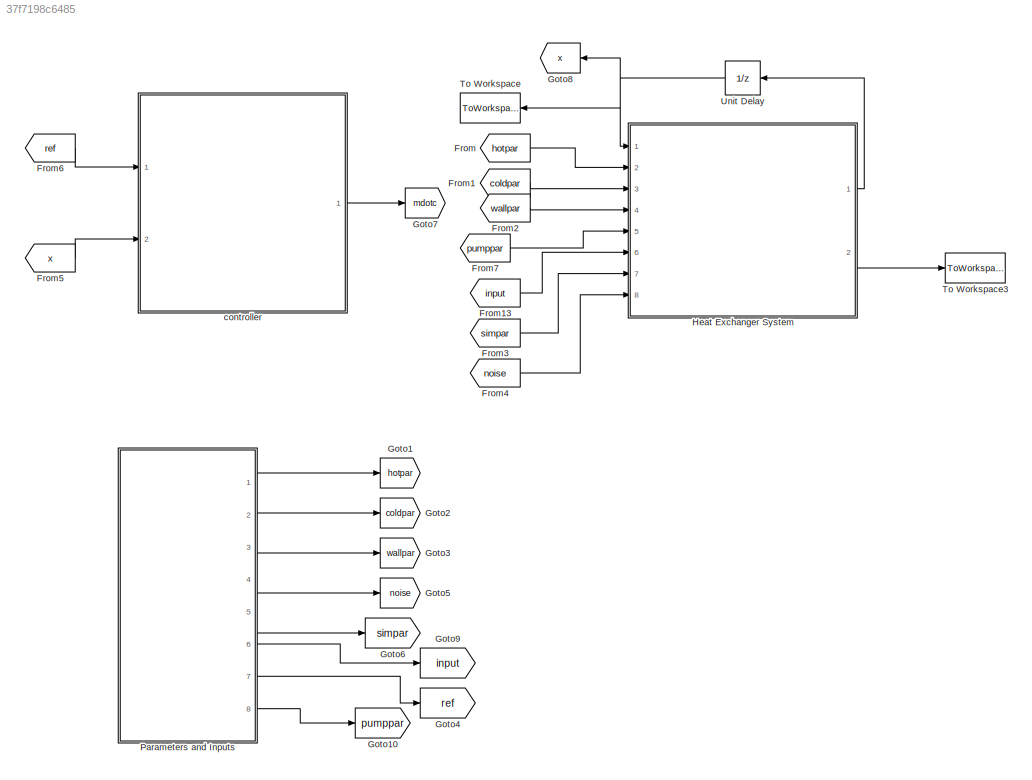
MODEL slx_37f7198c6485
KIND model
BLOCK [From] From
  GotoTag = hotpar
  TagVisibility = global
BLOCK [From] From1
  GotoTag = coldpar
  TagVisibility = global
BLOCK [From] From13
  GotoTag = input
  TagVisibility = global
BLOCK [From] From2
  GotoTag = wallpar
  TagVisibility = global
BLOCK [From] From3
  GotoTag = simpar
  TagVisibility = global
BLOCK [From] From4
  GotoTag = noise
  TagVisibility = global
BLOCK [From] From5
  GotoTag = x
  TagVisibility = global
BLOCK [From] From6
  GotoTag = ref
  TagVisibility = global
BLOCK [From] From7
  GotoTag = pumppar
  TagVisibility = global
BLOCK [Goto] Goto1
  GotoTag = hotpar
  TagVisibility = global
BLOCK [Goto] Goto10
  GotoTag = pumppar
  TagVisibility = global
BLOCK [Goto] Goto2
  GotoTag = coldpar
  TagVisibility = global
BLOCK [Goto] Goto3
  GotoTag = wallpar
  TagVisibility = global
BLOCK [Goto] Goto4
  GotoTag = ref
  TagVisibility = global
BLOCK [Goto] Goto5
  GotoTag = noise
  TagVisibility = global
BLOCK [Goto] Goto6
  GotoTag = simpar
  TagVisibility = global
BLOCK [Goto] Goto7
  GotoTag = mdotc
  TagVisibility = global
BLOCK [Goto] Goto8
  GotoTag = x
  TagVisibility = global
BLOCK [Goto] Goto9
  GotoTag = input
  TagVisibility = global
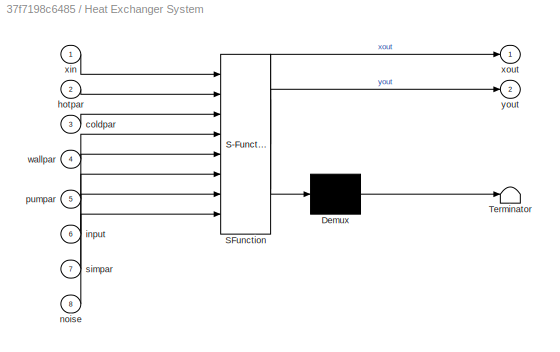
BLOCK [SubSystem] Heat Exchanger System
  ErrorFcn = Stateflow.Translate.translate
  FunctionWithSeparateData = off
  MaskHideContents = off
  MinAlgLoopOccurrences = off
  Opaque = off
  PermitHierarchicalResolution = ExplicitOnly
  Ports = [8, 2]
  PropExecContextOutsideSubsystem = off
  RTWSystemCode = Auto
  RequestExecContextInheritance = off
  SFBlockType = MATLAB Function
  TreatAsAtomicUnit = on
BLOCK [Demux] Heat Exchanger System/ Demux 
  Outputs = 1
  Ports = [1, 1]
BLOCK [S-Function] Heat Exchanger System/ SFunction 
  EnableBusSupport = on
  FunctionName = sf_sfun
  PortCounts = [8 3]
  Ports = [8, 3]
  Tag = Stateflow S-Function HXpump_justplant 2
BLOCK [Terminator] Heat Exchanger System/ Terminator 
BLOCK [Inport] Heat Exchanger System/coldpar
  IconDisplay = Port number
  Port = 3
BLOCK [Inport] Heat Exchanger System/hotpar
  IconDisplay = Port number
  Port = 2
BLOCK [Inport] Heat Exchanger System/input
  IconDisplay = Port number
  Port = 6
BLOCK [Inport] Heat Exchanger System/noise
  IconDisplay = Port number
  Port = 8
BLOCK [Inport] Heat Exchanger System/pumpar
  IconDisplay = Port number
  Port = 5
BLOCK [Inport] Heat Exchanger System/simpar
  IconDisplay = Port number
  Port = 7
BLOCK [Inport] Heat Exchanger System/wallpar
  IconDisplay = Port number
  Port = 4
BLOCK [Inport] Heat Exchanger System/xin
  IconDisplay = Port number
BLOCK [Outport] Heat Exchanger System/xout
  IconDisplay = Port number
BLOCK [Outport] Heat Exchanger System/yout
  IconDisplay = Port number
  Port = 2
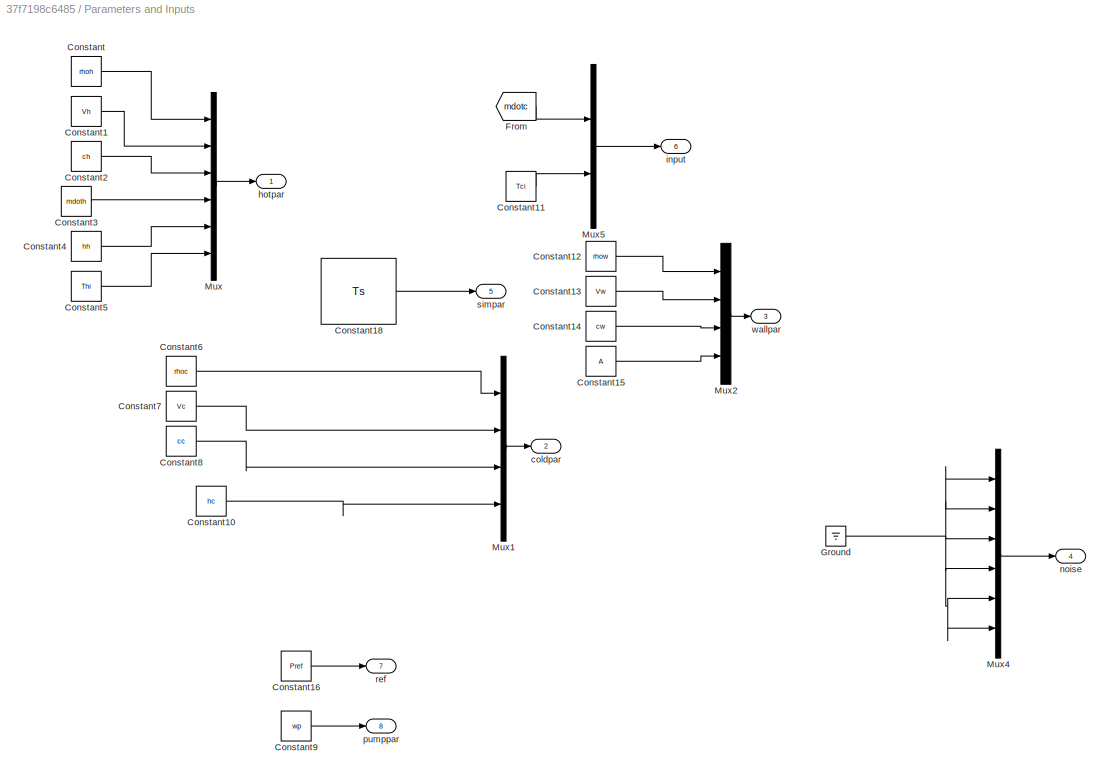
BLOCK [SubSystem] Parameters and Inputs
  FunctionWithSeparateData = off
  MaskHideContents = off
  MinAlgLoopOccurrences = off
  Opaque = off
  Ports = [0, 8]
  PropExecContextOutsideSubsystem = off
  RTWSystemCode = Auto
  RequestExecContextInheritance = off
BLOCK [Constant] Parameters and Inputs/Constant
  SampleTime = Ts
  Value = rhoh
BLOCK [Constant] Parameters and Inputs/Constant1
  SampleTime = Ts
  Value = Vh
BLOCK [Constant] Parameters and Inputs/Constant10
  SampleTime = Ts
  Value = hc
BLOCK [Constant] Parameters and Inputs/Constant11
  SampleTime = Ts
  Value = Tci
BLOCK [Constant] Parameters and Inputs/Constant12
  SampleTime = Ts
  Value = rhow
BLOCK [Constant] Parameters and Inputs/Constant13
  SampleTime = Ts
  Value = Vw
BLOCK [Constant] Parameters and Inputs/Constant14
  SampleTime = Ts
  Value = cw
BLOCK [Constant] Parameters and Inputs/Constant15
  SampleTime = Ts
  Value = A
BLOCK [Constant] Parameters and Inputs/Constant16
  SampleTime = Ts
  Value = Pref
BLOCK [Constant] Parameters and Inputs/Constant18
  SampleTime = Ts
  Value = Ts
BLOCK [Constant] Parameters and Inputs/Constant2
  SampleTime = Ts
  Value = ch
BLOCK [Constant] Parameters and Inputs/Constant3
  SampleTime = Ts
  Value = mdoth
BLOCK [Constant] Parameters and Inputs/Constant4
  SampleTime = Ts
  Value = hh
BLOCK [Constant] Parameters and Inputs/Constant5
  SampleTime = Ts
  Value = Thi
BLOCK [Constant] Parameters and Inputs/Constant6
  SampleTime = Ts
  Value = rhoc
BLOCK [Constant] Parameters and Inputs/Constant7
  SampleTime = Ts
  Value = Vc
BLOCK [Constant] Parameters and Inputs/Constant8
  SampleTime = Ts
  Value = cc
BLOCK [Constant] Parameters and Inputs/Constant9
  SampleTime = Ts
  Value = wp
BLOCK [From] Parameters and Inputs/From
  GotoTag = mdotc
  TagVisibility = global
BLOCK [Ground] Parameters and Inputs/Ground
BLOCK [Mux] Parameters and Inputs/Mux
  DisplayOption = bar
  Inputs = 6
  Ports = [6, 1]
BLOCK [Mux] Parameters and Inputs/Mux1
  DisplayOption = bar
  Ports = [4, 1]
BLOCK [Mux] Parameters and Inputs/Mux2
  DisplayOption = bar
  Ports = [4, 1]
BLOCK [Mux] Parameters and Inputs/Mux4
  DisplayOption = bar
  Inputs = 6
  Ports = [6, 1]
BLOCK [Mux] Parameters and Inputs/Mux5
  DisplayOption = bar
  Inputs = 2
  Ports = [2, 1]
BLOCK [Outport] Parameters and Inputs/coldpar
  IconDisplay = Port number
  Port = 2
BLOCK [Outport] Parameters and Inputs/hotpar
  IconDisplay = Port number
BLOCK [Outport] Parameters and Inputs/input
  IconDisplay = Port number
  Port = 6
BLOCK [Outport] Parameters and Inputs/noise
  IconDisplay = Port number
  Port = 4
BLOCK [Outport] Parameters and Inputs/pumppar
  IconDisplay = Port number
  Port = 8
BLOCK [Outport] Parameters and Inputs/ref
  IconDisplay = Port number
  Port = 7
BLOCK [Outport] Parameters and Inputs/simpar
  IconDisplay = Port number
  Port = 5
BLOCK [Outport] Parameters and Inputs/wallpar
  IconDisplay = Port number
  Port = 3
BLOCK [ToWorkspace] To Workspace
  MaxDataPoints = inf
  Ports = [1]
  SampleTime = -1
  VariableName = XDT
BLOCK [ToWorkspace] To Workspace3
  MaxDataPoints = inf
  Ports = [1]
  SampleTime = -1
  VariableName = yout
BLOCK [UnitDelay] Unit Delay
  InitialCondition = x0([1 2 3 6])
  InputProcessing = Elements as channels (sample based)
  SampleTime = -1
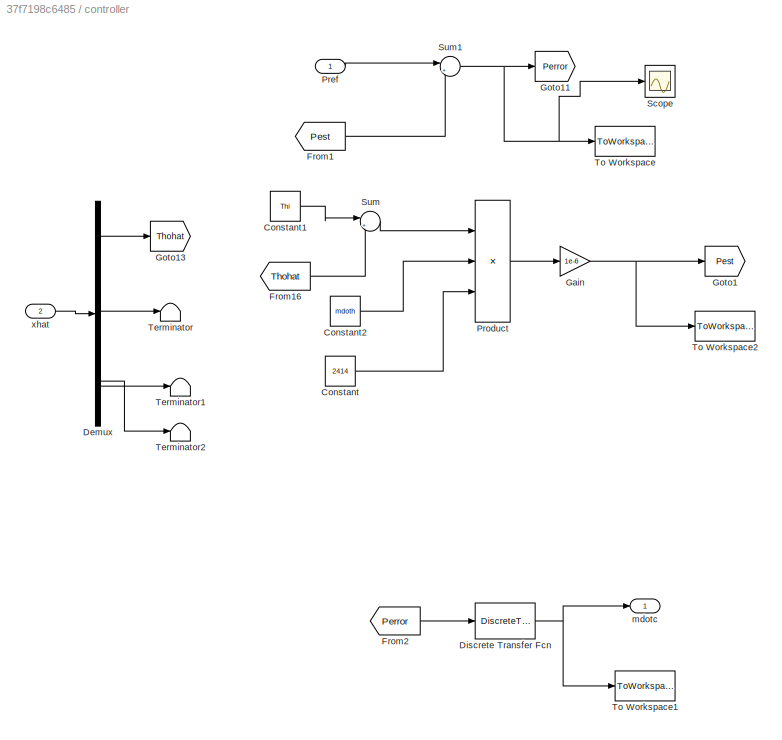
BLOCK [SubSystem] controller
  FunctionWithSeparateData = off
  MaskHideContents = off
  MinAlgLoopOccurrences = off
  Opaque = off
  Ports = [2, 1]
  PropExecContextOutsideSubsystem = off
  RTWSystemCode = Auto
  RequestExecContextInheritance = off
BLOCK [Constant] controller/Constant
  SampleTime = Ts
  Value = 2414
BLOCK [Constant] controller/Constant1
  SampleTime = Ts
  Value = Thi
BLOCK [Constant] controller/Constant2
  SampleTime = Ts
  Value = mdoth
BLOCK [Demux] controller/Demux
  DisplayOption = bar
  Ports = [1, 4]
BLOCK [DiscreteTransferFcn] controller/Discrete Transfer Fcn
  Denominator = [1 -1]
  InitialStates = 20
  InputPortMap = u0
  Numerator = [kp -(kp-ki*Ts)]
  Ports = [1, 1]
  SampleTime = Ts
BLOCK [From] controller/From1
  GotoTag = Pest
  TagVisibility = global
BLOCK [From] controller/From16
  GotoTag = Thohat
  TagVisibility = global
BLOCK [From] controller/From2
  GotoTag = Perror
  TagVisibility = global
BLOCK [Gain] controller/Gain
  Gain = 1e-6
  OutDataTypeStr = Inherit: Inherit via internal rule
  ParamDataTypeStr = Inherit: Inherit via internal rule
  SaturateOnIntegerOverflow = off
BLOCK [Goto] controller/Goto1
  GotoTag = Pest
  TagVisibility = global
BLOCK [Goto] controller/Goto11
  GotoTag = Perror
  TagVisibility = global
BLOCK [Goto] controller/Goto13
  GotoTag = Thohat
  TagVisibility = global
BLOCK [Inport] controller/Pref
  IconDisplay = Port number
BLOCK [Product] controller/Product
  InputSameDT = off
  Inputs = 3
  OutDataTypeStr = Inherit: Inherit via internal rule
  Ports = [3, 1]
  RndMeth = Floor
  SaturateOnIntegerOverflow = off
BLOCK [Scope] controller/Scope
  DataFormat = StructureWithTime
  Floating = off
  LimitDataPoints = off
  NumInputPorts = 1
  Ports = [1]
  SampleTime = 0
  ShowLegends = off
BLOCK [Sum] controller/Sum
  IconShape = round
  InputSameDT = off
  Inputs = |+-
  OutDataTypeStr = Inherit: Inherit via internal rule
  Ports = [2, 1]
  SaturateOnIntegerOverflow = off
BLOCK [Sum] controller/Sum1
  IconShape = round
  InputSameDT = off
  Inputs = |+-
  OutDataTypeStr = Inherit: Inherit via internal rule
  Ports = [2, 1]
  SaturateOnIntegerOverflow = off
BLOCK [Terminator] controller/Terminator
BLOCK [Terminator] controller/Terminator1
BLOCK [Terminator] controller/Terminator2
BLOCK [ToWorkspace] controller/To Workspace
  MaxDataPoints = inf
  Ports = [1]
  SampleTime = -1
  VariableName = Perror
BLOCK [ToWorkspace] controller/To Workspace1
  MaxDataPoints = inf
  Ports = [1]
  SampleTime = -1
  VariableName = control
BLOCK [ToWorkspace] controller/To Workspace2
  MaxDataPoints = inf
  Ports = [1]
  SampleTime = -1
  VariableName = Pest
BLOCK [Outport] controller/mdotc
  IconDisplay = Port number
BLOCK [Inport] controller/xhat
  IconDisplay = Port number
  Port = 2
LINE From13:1 -> Heat Exchanger System:6
LINE From1:1 -> Heat Exchanger System:3
LINE From2:1 -> Heat Exchanger System:4
LINE From3:1 -> Heat Exchanger System:7
LINE From4:1 -> Heat Exchanger System:8
LINE From5:1 -> controller:2
LINE From6:1 -> controller:1
LINE From7:1 -> Heat Exchanger System:5
LINE From:1 -> Heat Exchanger System:2
LINE Heat Exchanger System:1 -> Unit Delay:1
LINE Heat Exchanger System:2 -> To Workspace3:1
LINE Parameters and Inputs/Constant10:1 -> Parameters and Inputs/Mux1:4
LINE Parameters and Inputs/Constant11:1 -> Parameters and Inputs/Mux5:2
LINE Parameters and Inputs/Constant12:1 -> Parameters and Inputs/Mux2:1
LINE Parameters and Inputs/Constant13:1 -> Parameters and Inputs/Mux2:2
LINE Parameters and Inputs/Constant14:1 -> Parameters and Inputs/Mux2:3
LINE Parameters and Inputs/Constant15:1 -> Parameters and Inputs/Mux2:4
LINE Parameters and Inputs/Constant16:1 -> Parameters and Inputs/ref:1
LINE Parameters and Inputs/Constant18:1 -> Parameters and Inputs/simpar:1
LINE Parameters and Inputs/Constant1:1 -> Parameters and Inputs/Mux:2
LINE Parameters and Inputs/Constant2:1 -> Parameters and Inputs/Mux:3
LINE Parameters and Inputs/Constant3:1 -> Parameters and Inputs/Mux:4
LINE Parameters and Inputs/Constant4:1 -> Parameters and Inputs/Mux:5
LINE Parameters and Inputs/Constant5:1 -> Parameters and Inputs/Mux:6
LINE Parameters and Inputs/Constant6:1 -> Parameters and Inputs/Mux1:1
LINE Parameters and Inputs/Constant7:1 -> Parameters and Inputs/Mux1:2
LINE Parameters and Inputs/Constant8:1 -> Parameters and Inputs/Mux1:3
LINE Parameters and Inputs/Constant9:1 -> Parameters and Inputs/pumppar:1
LINE Parameters and Inputs/Constant:1 -> Parameters and Inputs/Mux:1
LINE Parameters and Inputs/From:1 -> Parameters and Inputs/Mux5:1
NET Parameters and Inputs/Ground:1 -> Parameters and Inputs/Mux4:1, Parameters and Inputs/Mux4:2, Parameters and Inputs/Mux4:3, Parameters and Inputs/Mux4:4, Parameters and Inputs/Mux4:5, Parameters and Inputs/Mux4:6
LINE Parameters and Inputs/Mux1:1 -> Parameters and Inputs/coldpar:1
LINE Parameters and Inputs/Mux2:1 -> Parameters and Inputs/wallpar:1
LINE Parameters and Inputs/Mux4:1 -> Parameters and Inputs/noise:1
LINE Parameters and Inputs/Mux5:1 -> Parameters and Inputs/input:1
LINE Parameters and Inputs/Mux:1 -> Parameters and Inputs/hotpar:1
LINE Parameters and Inputs:1 -> Goto1:1
LINE Parameters and Inputs:2 -> Goto2:1
LINE Parameters and Inputs:3 -> Goto3:1
LINE Parameters and Inputs:4 -> Goto5:1
LINE Parameters and Inputs:5 -> Goto6:1
LINE Parameters and Inputs:6 -> Goto9:1
LINE Parameters and Inputs:7 -> Goto4:1
LINE Parameters and Inputs:8 -> Goto10:1
NET Unit Delay:1 -> Goto8:1, Heat Exchanger System:1, To Workspace:1
LINE controller/Constant1:1 -> controller/Sum:1
LINE controller/Constant2:1 -> controller/Product:2
LINE controller/Constant:1 -> controller/Product:3
LINE controller/Demux:1 -> controller/Goto13:1
LINE controller/Demux:2 -> controller/Terminator:1
LINE controller/Demux:3 -> controller/Terminator1:1
LINE controller/Demux:4 -> controller/Terminator2:1
NET controller/Discrete Transfer Fcn:1 -> controller/To Workspace1:1, controller/mdotc:1
LINE controller/From16:1 -> controller/Sum:2
LINE controller/From1:1 -> controller/Sum1:2
LINE controller/From2:1 -> controller/Discrete Transfer Fcn:1
NET controller/Gain:1 -> controller/Goto1:1, controller/To Workspace2:1
LINE controller/Pref:1 -> controller/Sum1:1
LINE controller/Product:1 -> controller/Gain:1
NET controller/Sum1:1 -> controller/Goto11:1, controller/Scope:1, controller/To Workspace:1
LINE controller/Sum:1 -> controller/Product:1
LINE controller/xhat:1 -> controller/Demux:1
LINE controller:1 -> Goto7:1
note: NET lines group one-source signal fan-out (src -> all destinations, sorted); 1:1 wires keep LINE
